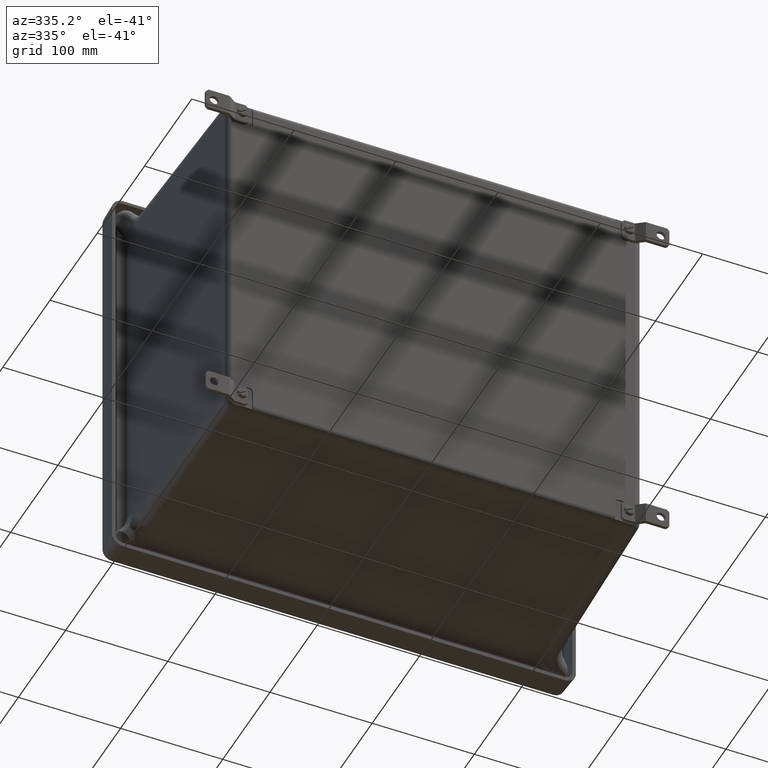
[diagram: clean part render]
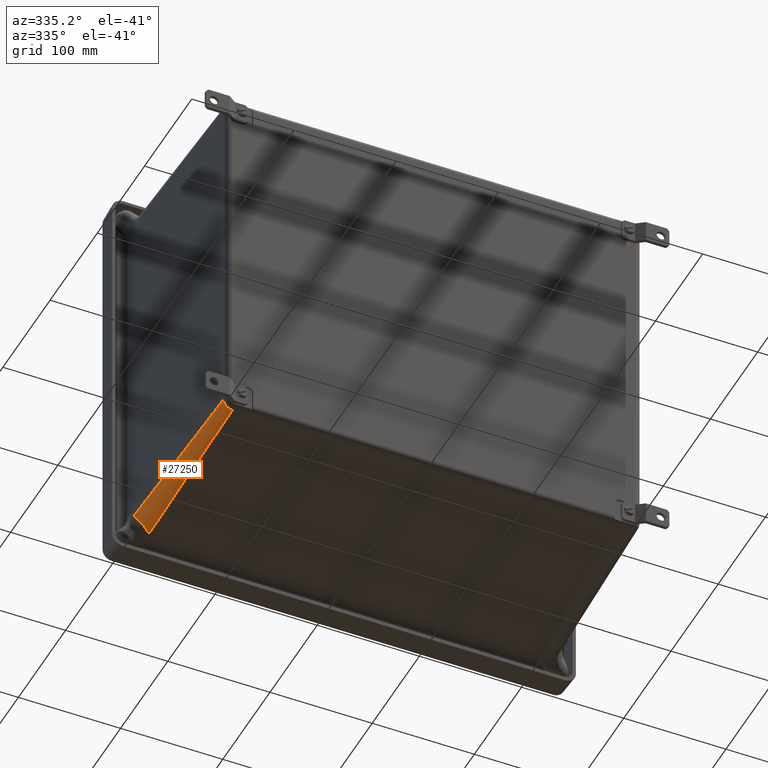
[diagram: same view with one face highlighted and labeled with its STEP entity id]
A machine part, auxiliary view. The second image highlights one B-rep face of the part: STEP entity #27250.
In plain terms, the highlighted conical surface has half-angle 2 deg.
Its self-contained STEP definition (entity closure, byte-faithful):
#213 = CARTESIAN_POINT ( 'NONE',  ( -8.082003195924777100, -1.154340980098278500, -7.116517050664488600 ) ) ;
#304 = VERTEX_POINT ( 'NONE', #26864 ) ;
#610 = CARTESIAN_POINT ( 'NONE',  ( -8.055623160166819100, -1.154340980098276700, -7.142945840222605400 ) ) ;
#776 = CARTESIAN_POINT ( 'NONE',  ( -7.896076675519851500, -1.105433588301483600, -7.251658716422783300 ) ) ;
#896 = AXIS2_PLACEMENT_3D ( 'NONE', #22352, #1296, #25841 ) ;
#1296 = DIRECTION ( 'NONE',  ( 0.0000000000000000000, 1.000000000000000000, -0.0000000000000000000 ) ) ;
#2007 = ORIENTED_EDGE ( 'NONE', *, *, #3276, .T. ) ;
#2038 = CARTESIAN_POINT ( 'NONE',  ( -8.229631649489089500, -1.034684394571005400, -6.848088492405045400 ) ) ;
#3276 = EDGE_CURVE ( 'NONE', #304, #29608, #8325, .T. ) ;
#3439 = ORIENTED_EDGE ( 'NONE', *, *, #29060, .F. ) ;
#3692 = CIRCLE ( 'NONE', #8968, 0.5853263706312297200 ) ;
#4287 = CARTESIAN_POINT ( 'NONE',  ( -7.870329158308278400, -1.090666915470075400, -7.263089199420941000 ) ) ;
#4933 = LINE ( 'NONE', #35172, #42155 ) ;
#5534 = ORIENTED_EDGE ( 'NONE', *, *, #36914, .T. ) ;
#5544 = CARTESIAN_POINT ( 'NONE',  ( -8.214529713311563300, -1.070132988000083600, -6.898189162786696500 ) ) ;
#5590 = DIRECTION ( 'NONE',  ( 0.0000000000000000000, 0.9993908270190957600, -0.03489949670250101100 ) ) ;
#7646 = VERTEX_POINT ( 'NONE', #7740 ) ;
#7740 = CARTESIAN_POINT ( 'NONE',  ( -7.654753811748701500, -0.9296581816858050500, -7.309608370891943700 ) ) ;
#7799 = CARTESIAN_POINT ( 'NONE',  ( -7.818957306339775900, -1.058193936194564900, -7.282938550132343800 ) ) ;
#8325 = CIRCLE ( 'NONE', #896, 0.3501838328978613100 ) ;
#8968 = AXIS2_PLACEMENT_3D ( 'NONE', #17798, #42209, #21320 ) ;
#9054 = CARTESIAN_POINT ( 'NONE',  ( -8.194313035877932800, -1.101353259296283600, -6.948850053984262600 ) ) ;
#10689 = VERTEX_POINT ( 'NONE', #213 ) ;
#10805 = DIRECTION ( 'NONE',  ( -0.03489949670250101100, 0.9993908270190957600, 0.0000000000000000000 ) ) ;
#11123 = VERTEX_POINT ( 'NONE', #28521 ) ;
#11137 = EDGE_CURVE ( 'NONE', #16256, #7646, #34588, .T. ) ;
#11181 = CARTESIAN_POINT ( 'NONE',  ( -8.023712709061477700, -1.152455373476522600, -7.171407219735270300 ) ) ;
#11334 = CARTESIAN_POINT ( 'NONE',  ( -7.736939666630640900, -0.9953523086491816700, -7.301807454537426500 ) ) ;
#12620 = CARTESIAN_POINT ( 'NONE',  ( -8.167989464987222400, -1.127197756986663800, -7.000526664092938700 ) ) ;
#13013 = LINE ( 'NONE', #33648, #38707 ) ;
#14720 = CARTESIAN_POINT ( 'NONE',  ( -7.989982778459361300, -1.144810436203722600, -7.196774024897570700 ) ) ;
#14880 = CARTESIAN_POINT ( 'NONE',  ( -7.688001579675326300, -0.9558559376848492200, -7.307987993204385200 ) ) ;
#16177 = CARTESIAN_POINT ( 'NONE',  ( -8.135541034856725400, -1.145389691318190700, -7.051473635582720300 ) ) ;
#16256 = VERTEX_POINT ( 'NONE', #18446 ) ;
#17150 = DIRECTION ( 'NONE',  ( 0.0000000000000000000, 0.0000000000000000000, -1.000000000000000000 ) ) ;
#17234 = EDGE_CURVE ( 'NONE', #11123, #10689, #25028, .T. ) ;
#17798 = CARTESIAN_POINT ( 'NONE',  ( -7.654753811748701500, -1.154340980098276700, -6.716435904048592100 ) ) ;
#18290 = CARTESIAN_POINT ( 'NONE',  ( -7.964433635649543300, -1.136647534605033500, -7.213959013160145000 ) ) ;
#18446 = CARTESIAN_POINT ( 'NONE',  ( -8.055623160166819100, -1.154340980098276700, -7.142945840222605400 ) ) ;
#18449 = CARTESIAN_POINT ( 'NONE',  ( -7.654753811748701500, -0.9296581816858050500, -7.309608370891943700 ) ) ;
#19545 = CARTESIAN_POINT ( 'NONE',  ( -8.242595134203199300, -0.9833657665851007800, -6.782355915003883200 ) ) ;
#19682 = CARTESIAN_POINT ( 'NONE',  ( -8.096571856469037000, -1.154340980098278900, -7.100959078741905900 ) ) ;
#21320 = DIRECTION ( 'NONE',  ( 0.0000000000000000000, 0.0000000000000000000, -1.000000000000000000 ) ) ;
#21652 = CONICAL_SURFACE ( 'NONE', #34280, 0.6258750000000006300, 0.03490658503988663300 ) ;
#21831 = CARTESIAN_POINT ( 'NONE',  ( -7.921766406416812100, -1.118886691746426200, -7.239050496782627200 ) ) ;
#22352 = CARTESIAN_POINT ( 'NONE',  ( -7.654753811748701500, -7.887942248218543300, -6.716435904048592100 ) ) ;
#23074 = CARTESIAN_POINT ( 'NONE',  ( -8.233610462661996400, -1.022104328213478300, -6.831496735142982500 ) ) ;
#24157 = ORIENTED_EDGE ( 'NONE', *, *, #17234, .T. ) ;
#25028 = B_SPLINE_CURVE_WITH_KNOTS ( 'NONE', 3,
 ( #43786, #29939, #40422, #19545, #43945, #23074, #2038, #26588, #5544, #30079, #9054, #33600, #12620, #37103, #16177, #40565, #19682, #44100 ),
 .UNSPECIFIED., .F., .F.,
 ( 4, 2, 2, 2, 2, 2, 2, 2, 4 ),
 ( 3.103167691559091400E-017, 0.001604967048826095400, 0.003209934097652160000, 0.004814901146478224400, 0.006419868195304288800, 0.008024835244130352300, 0.009629802292956417600, 0.01123476934178248300, 0.01283973639060854600 ),
 .UNSPECIFIED. ) ;
#25170 = CARTESIAN_POINT ( 'NONE',  ( -8.039953252983316600, -1.154340980098278200, -7.157673716292201500 ) ) ;
#25325 = CARTESIAN_POINT ( 'NONE',  ( -7.887502816976141400, -1.100677532458553200, -7.255620277504633900 ) ) ;
#25841 = DIRECTION ( 'NONE',  ( 0.0000000000000000000, 0.0000000000000000000, -1.000000000000000000 ) ) ;
#26588 = CARTESIAN_POINT ( 'NONE',  ( -8.220083213522182000, -1.058709666340499100, -6.881454499910794300 ) ) ;
#26864 = CARTESIAN_POINT ( 'NONE',  ( -7.654753811748701500, -7.887942248218545100, -7.066619736946452500 ) ) ;
#27250 = ADVANCED_FACE ( 'NONE', ( #31990 ), #21652, .T. ) ;
#28521 = CARTESIAN_POINT ( 'NONE',  ( -8.247879675952686900, -0.9309927066703622700, -6.716435904048592100 ) ) ;
#28834 = CARTESIAN_POINT ( 'NONE',  ( -7.861699062723259200, -1.085392349897233100, -7.266607471266580900 ) ) ;
#29060 = EDGE_CURVE ( 'NONE', #304, #7646, #13013, .T. ) ;
#29608 = VERTEX_POINT ( 'NONE', #45146 ) ;
#29939 = CARTESIAN_POINT ( 'NONE',  ( -8.247431045612545500, -0.9438397987210834800, -6.733234868180957700 ) ) ;
#30079 = CARTESIAN_POINT ( 'NONE',  ( -8.201643660641128300, -1.091453195585482700, -6.931887531438890800 ) ) ;
#31046 = DIRECTION ( 'NONE',  ( 0.0000000000000000000, 1.000000000000000000, 0.0000000000000000000 ) ) ;
#31955 = EDGE_LOOP ( 'NONE', ( #3439, #2007, #40415, #24157, #5534, #34695 ) ) ;
#31990 = FACE_OUTER_BOUND ( 'NONE', #31955, .T. ) ;
#32319 = CARTESIAN_POINT ( 'NONE',  ( -7.785955410590608100, -1.033779242302295300, -7.292150973256784900 ) ) ;
#33600 = CARTESIAN_POINT ( 'NONE',  ( -8.177523802612952900, -1.119213229073872600, -6.983119225085735200 ) ) ;
#33648 = CARTESIAN_POINT ( 'NONE',  ( -7.654753811748701500, 0.006819840780926731900, -7.342310904048591000 ) ) ;
#34280 = AXIS2_PLACEMENT_3D ( 'NONE', #38088, #31046, #17150 ) ;
#34588 = B_SPLINE_CURVE_WITH_KNOTS ( 'NONE', 3,
 ( #610, #25170, #11181, #35675, #14720, #39185, #18290, #42689, #21831, #776, #25325, #4287, #28834, #7799, #32319, #11334, #35844, #14880, #39336, #18449 ),
 .UNSPECIFIED., .F., .F.,
 ( 4, 2, 2, 2, 2, 2, 2, 2, 2, 4 ),
 ( 0.0000000000000000000, 0.001626788828953581400, 0.002440183243430372500, 0.003253577657907162900, 0.004880366486860783200, 0.005693760901337578300, 0.006507155315814373500, 0.009760732973721576700, 0.01138752180267515500, 0.01301431063162873000 ),
 .UNSPECIFIED. ) ;
#34695 = ORIENTED_EDGE ( 'NONE', *, *, #11137, .T. ) ;
#35172 = CARTESIAN_POINT ( 'NONE',  ( -8.280628811748703900, 0.006819840780926751000, -6.716435904048592100 ) ) ;
#35675 = CARTESIAN_POINT ( 'NONE',  ( -7.998532445141693300, -1.147052055794443200, -7.190601094161756600 ) ) ;
#35844 = CARTESIAN_POINT ( 'NONE',  ( -7.720684206128649600, -0.9822351278304886100, -7.304315284756383700 ) ) ;
#36914 = EDGE_CURVE ( 'NONE', #10689, #16256, #3692, .T. ) ;
#37103 = CARTESIAN_POINT ( 'NONE',  ( -8.147020140266811000, -1.140248671564449800, -7.034646649651239000 ) ) ;
#38088 = CARTESIAN_POINT ( 'NONE',  ( -7.654753811748701500, 0.006819840780926731900, -6.716435904048592100 ) ) ;
#38707 = VECTOR ( 'NONE', #5590, 39.37007874015748900 ) ;
#39185 = CARTESIAN_POINT ( 'NONE',  ( -7.972953947557671000, -1.139611610772111900, -7.208436438917122900 ) ) ;
#39336 = CARTESIAN_POINT ( 'NONE',  ( -7.671588638655840100, -0.9425762239620643100, -7.309157262915330300 ) ) ;
#40415 = ORIENTED_EDGE ( 'NONE', *, *, #42294, .T. ) ;
#40422 = CARTESIAN_POINT ( 'NONE',  ( -8.246266865088244900, -0.9570600435162415200, -6.749637855985864300 ) ) ;
#40565 = CARTESIAN_POINT ( 'NONE',  ( -8.110333033862591600, -1.152452265055460500, -7.084627967775812600 ) ) ;
#42155 = VECTOR ( 'NONE', #10805, 39.37007874015748900 ) ;
#42209 = DIRECTION ( 'NONE',  ( -0.0000000000000000000, -1.000000000000000000, -0.0000000000000000000 ) ) ;
#42294 = EDGE_CURVE ( 'NONE', #29608, #11123, #4933, .T. ) ;
#42689 = CARTESIAN_POINT ( 'NONE',  ( -7.938850690498185300, -1.126773750636969300, -7.229684912302976100 ) ) ;
#43786 = CARTESIAN_POINT ( 'NONE',  ( -8.247879675952686900, -0.9309927066703622700, -6.716435904048592100 ) ) ;
#43945 = CARTESIAN_POINT ( 'NONE',  ( -8.240083443150645300, -0.9964682673870825000, -6.798657031475305400 ) ) ;
#44100 = CARTESIAN_POINT ( 'NONE',  ( -8.082003195924777100, -1.154340980098278500, -7.116517050664488600 ) ) ;
#45146 = CARTESIAN_POINT ( 'NONE',  ( -8.004937644646563700, -7.887942248218545100, -6.716435904048592100 ) ) ;